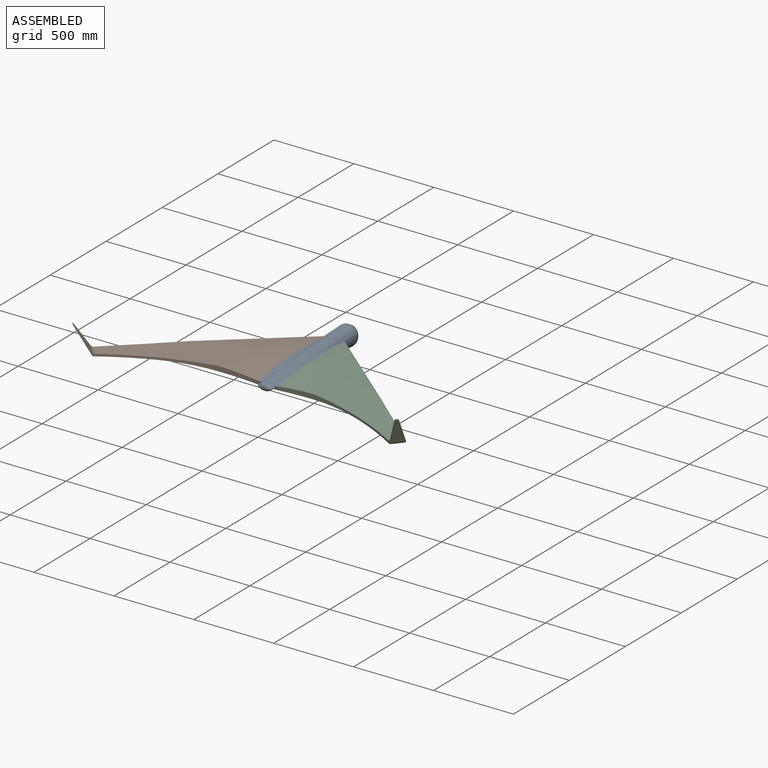
[diagram: assembled view]
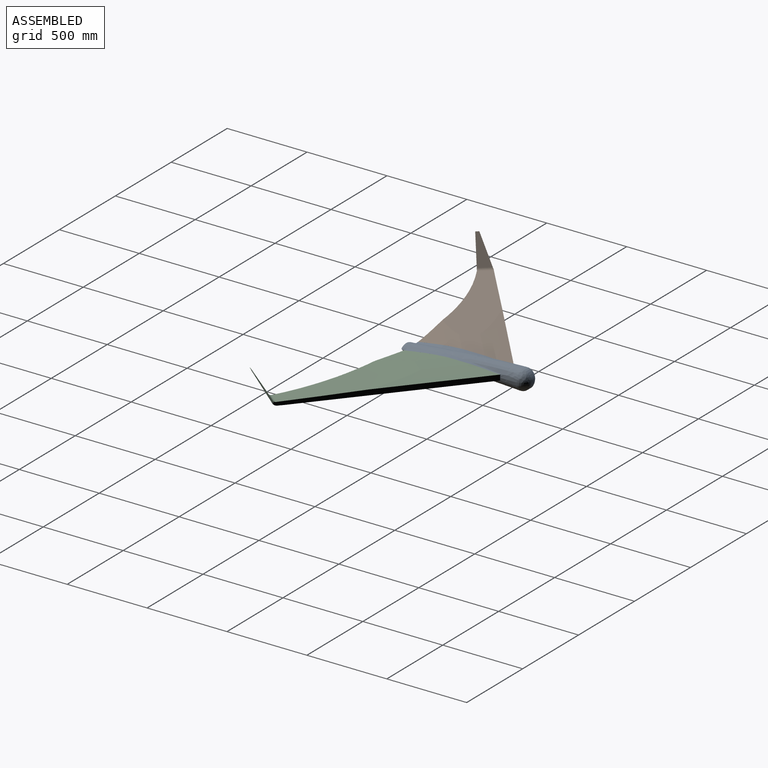
[diagram: assembled view, second angle]
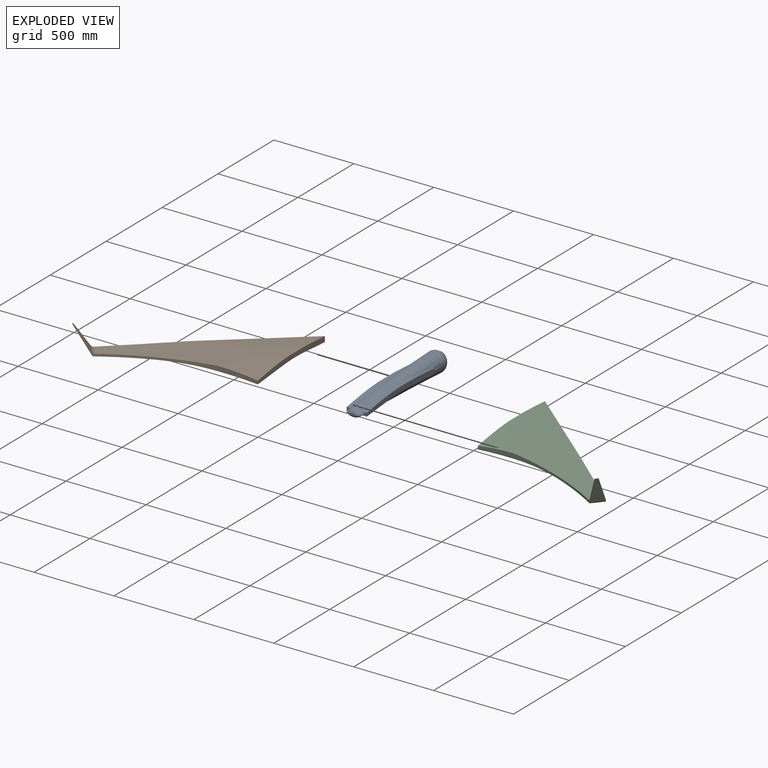
[diagram: exploded view]
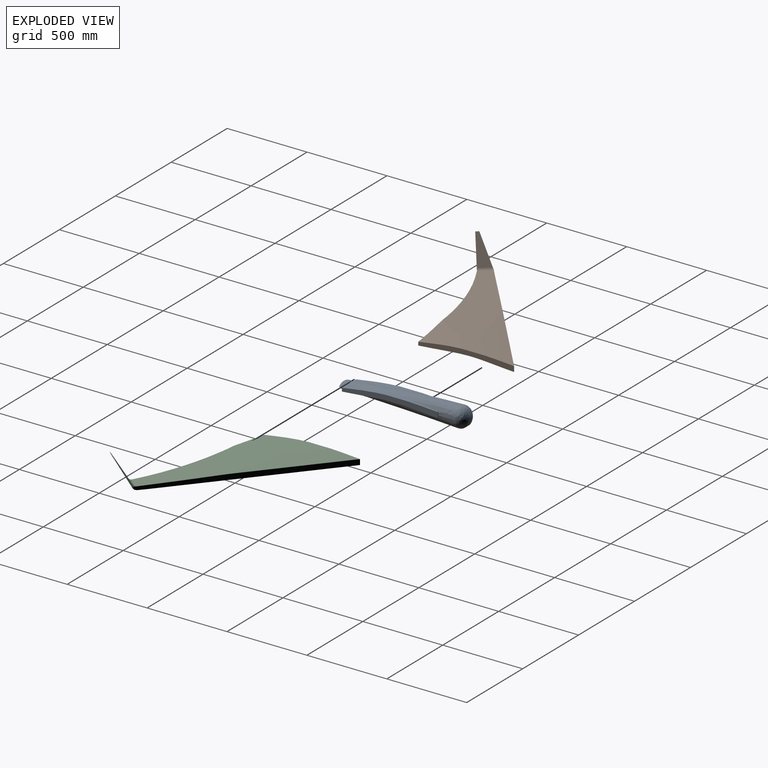
[diagram: exploded view, second angle]
ASSEMBLY  parts=3 mates=2
PART A: 38 faces, bbox 136.3x972.1x148.7 mm
  f0: bspline ~956.24x100.36mm, area 52413.8mm2, adj f1,f6,f7,f8,f9,f33,f34,f35
  f1: plane 27.38x21.07mm, normal (0,-1,0), area 420.2mm2, adj f0,f2,f5,f7,f37
  f2: extruded ~274.14x34.25mm, area 8037.8mm2, adj f1,f3,f5,f37
  f3: plane 142.21x34.25mm, normal (0,0,1), area 3627.5mm2, adj f2,f4,f5,f37
  f4: extruded ~183.66x18.94mm, area 2312.4mm2, adj f3,f5,f8,f37
  f5: plane 603.99x58.48mm, normal (1,0,0), area 17939mm2, adj f1,f2,f3,f4,f7,f8
  f6: bspline ~277.89x84.44mm, area 0mm2, adj f0,f7
  f7: extruded ~600x27.32mm, area 5333.8mm2, adj f0,f1,f5,f6,f8
  f8: plane 33.96x6.71mm, normal (0,1,0), area 121.5mm2, adj f0,f4,f5,f7,f37
  f9: plane 63.54x5.86mm, normal (1,0,0), area 186.1mm2, adj f0,f10,f37
  f10: cylinder r=56mm len=56mm, axis (0,0,-1), area 515.2mm2, adj f9,f11,f32,f33
  f11: bspline ~69.86x59.69mm, area 4467.9mm2, adj f10,f12,f31,f32,f37
  f12: plane 65.06x33.21mm, normal (0,0,1), area 1452.8mm2, adj f11,f13,f30,f31,f37
  f13: bspline ~831.96x121.7mm, area 36096.9mm2, adj f12,f14,f18,f19,f20,f21,f22,f26
  f14: plane 27.38x21.07mm, normal (0,-1,0), area 420.2mm2, adj f13,f15,f17,f18,f35
  f15: extruded ~600x27.32mm, area 5333.8mm2, adj f14,f16,f17,f21,f35
  f16: bspline ~277.89x84.44mm, area 0mm2, adj f15,f35
  f17: plane 603.99x58.48mm, normal (-1,0,0), area 17939mm2, adj f14,f15,f18,f19,f20,f21
  f18: extruded ~274.14x34.25mm, area 8037.8mm2, adj f13,f14,f17,f19
  f19: plane 142.21x34.25mm, normal (0,0,1), area 3627.5mm2, adj f13,f17,f18,f20
  f20: extruded ~183.66x18.94mm, area 2312.4mm2, adj f13,f17,f19,f21
  f21: plane 33.96x6.71mm, normal (0,1,0), area 121.5mm2, adj f13,f15,f17,f20,f35
  f22: plane 63.54x5.86mm, normal (-1,0,0), area 186.1mm2, adj f13,f23,f35
  f23: cylinder r=56mm len=56mm, axis (0,0,-1), area 515.2mm2, adj f22,f24,f30,f32
  f24: bspline ~69.67x59.39mm, area 4221.3mm2, adj f23,f25,f32,f34,f35
  f25: cylinder r=56mm len=56mm, axis (1,0,0), area 2803.5mm2, adj f24,f32,f33,f34
  f26: bspline ~56.06x37.54mm, area 1209.8mm2, adj f13,f27,f28,f29
  f27: bspline ~50.99x37.54mm, area 1209.8mm2, adj f26,f28,f36,f37
  f28: plane 20x2.58mm, normal (0,-1,0), area 34.4mm2, adj f26,f27,f29,f36
  f29: bspline ~56.22x37.68mm, area 1278.2mm2, adj f13,f26,f28,f35,f36
  f30: bspline ~69.86x59.69mm, area 4467.9mm2, adj f12,f13,f23,f31,f32
  f31: cylinder r=56mm len=56mm, axis (-1,0,0), area 1804.1mm2, adj f11,f12,f30,f32
  f32: plane 9x9mm, normal (0,1,0), area 80.1mm2, adj f10,f11,f23,f24,f25,f30,f31,f33
  f33: bspline ~69.67x59.39mm, area 4221.3mm2, adj f0,f10,f25,f32,f34
  f34: plane 75.28x51.13mm, normal (0,0,-1), area 1800.4mm2, adj f0,f24,f25,f33,f35
  f35: bspline ~956.24x100.36mm, area 52413.8mm2, adj f0,f13,f14,f15,f16,f21,f22,f24
  f36: bspline ~56.22x37.68mm, area 1278.2mm2, adj f0,f27,f28,f29,f37
  f37: bspline ~831.96x121.7mm, area 36096.9mm2, adj f0,f1,f2,f3,f4,f8,f9,f11
PART B: 16 faces, bbox 1257.2x1127.1x207 mm
  f0: plane 185.96x81.08mm, normal (0.64,-0.77,0), area 1401.1mm2, adj f3,f4,f6,f11,f13,f14,f15
  f1: plane 925.94x776.96mm, normal (-0.64,0.77,0), area 36985.7mm2, adj f2,f3,f5,f7,f10,f12,f14,f15
  f2: extruded ~41.9x37.63mm, area 248mm2, adj f1,f3,f15
  f3: extruded ~1215.3x1123.95mm, area 274718.9mm2, adj f0,f1,f2,f5,f6,f15
  f4: plane 175.08x128.21mm, normal (-0.67,-0.56,-0.49), area 10698.6mm2, adj f0,f12,f13,f15
  f5: plane 603.13x57.62mm, normal (1,0,0), area 17939mm2, adj f1,f3,f6,f8,f9,f10
  f6: cylinder r=1692.78mm len=864.06mm, axis (0,0,-1), area 18117.4mm2, adj f0,f3,f5,f7,f8,f14
  f7: extruded ~819.12x759.46mm, area 147212.2mm2, adj f1,f6,f8,f9,f10,f14
  f8: extruded ~419.5x399.6mm, area 37903.6mm2, adj f5,f6,f7,f9
  f9: plane 255.47x205.01mm, normal (0,0,1), area 24174.9mm2, adj f5,f7,f8,f10
  f10: extruded ~623.56x555.12mm, area 65149mm2, adj f1,f5,f7,f9
  f11: plane 161.03x125.16mm, normal (0.66,0.55,0.52), area 9678.9mm2, adj f0,f12,f13,f14
  f12: plane 176.82x120.02mm, normal (-0.73,0.63,0.26), area 1403.1mm2, adj f1,f4,f11,f13,f14
  f13: plane 17.74x15.47mm, normal (-0.4,-0.33,0.86), area 63mm2, adj f0,f4,f11,f12
  f14: cylinder r=21mm len=79.1mm, axis (-0.64,0.77,0), area 1869.5mm2, adj f0,f1,f6,f7,f11,f12
  f15: cylinder r=31.09mm len=82.88mm, axis (-0.64,0.77,0), area 1839.6mm2, adj f0,f1,f2,f3,f4
PART C: 16 faces, bbox 1257.2x1127.1x207 mm
  f0: plane 185.96x81.08mm, normal (-0.64,-0.77,0), area 1401.1mm2, adj f3,f4,f6,f11,f13,f14,f15
  f1: plane 925.94x776.96mm, normal (0.64,0.77,0), area 36985.7mm2, adj f2,f3,f5,f7,f10,f12,f14,f15
  f2: extruded ~41.9x37.63mm, area 248mm2, adj f1,f3,f15
  f3: extruded ~1215.3x1123.95mm, area 274718.9mm2, adj f0,f1,f2,f5,f6,f15
  f4: plane 175.08x128.21mm, normal (0.67,-0.56,-0.49), area 10698.6mm2, adj f0,f12,f13,f15
  f5: plane 603.13x57.62mm, normal (-1,0,0), area 17939mm2, adj f1,f3,f6,f8,f9,f10
  f6: cylinder r=1692.78mm len=864.06mm, axis (0,0,-1), area 18117.4mm2, adj f0,f3,f5,f7,f8,f14
  f7: extruded ~819.12x759.46mm, area 147212.2mm2, adj f1,f6,f8,f9,f10,f14
  f8: extruded ~419.5x399.6mm, area 37903.6mm2, adj f5,f6,f7,f9
  f9: plane 255.47x205.01mm, normal (0,0,1), area 24174.9mm2, adj f5,f7,f8,f10
  f10: extruded ~623.56x555.12mm, area 65149mm2, adj f1,f5,f7,f9
  f11: plane 161.03x125.16mm, normal (-0.66,0.55,0.52), area 9678.9mm2, adj f0,f12,f13,f14
  f12: plane 176.82x120.02mm, normal (0.73,0.63,0.26), area 1403.1mm2, adj f1,f4,f11,f13,f14
  f13: plane 17.74x15.47mm, normal (0.4,-0.33,0.86), area 63mm2, adj f0,f4,f11,f12
  f14: cylinder r=21mm len=79.1mm, axis (0.64,0.77,0), area 1869.5mm2, adj f0,f1,f6,f7,f11,f12
  f15: cylinder r=31.09mm len=82.88mm, axis (0.64,0.77,0), area 1839.6mm2, adj f0,f1,f2,f3,f4
PLACE A t=(282.65,0.01,0)mm
PLACE B t=(219.65,0.02,0.01)mm
PLACE C t=(345.65,0,0)mm
MATE fastened B.f5 <-> A.f17  axis (1,0,0) through (219.65,-284.83,10.21)mm
MATE fastened A.f5 <-> C.f5  axis (1,0,0) through (345.65,-284.85,10.2)mm
